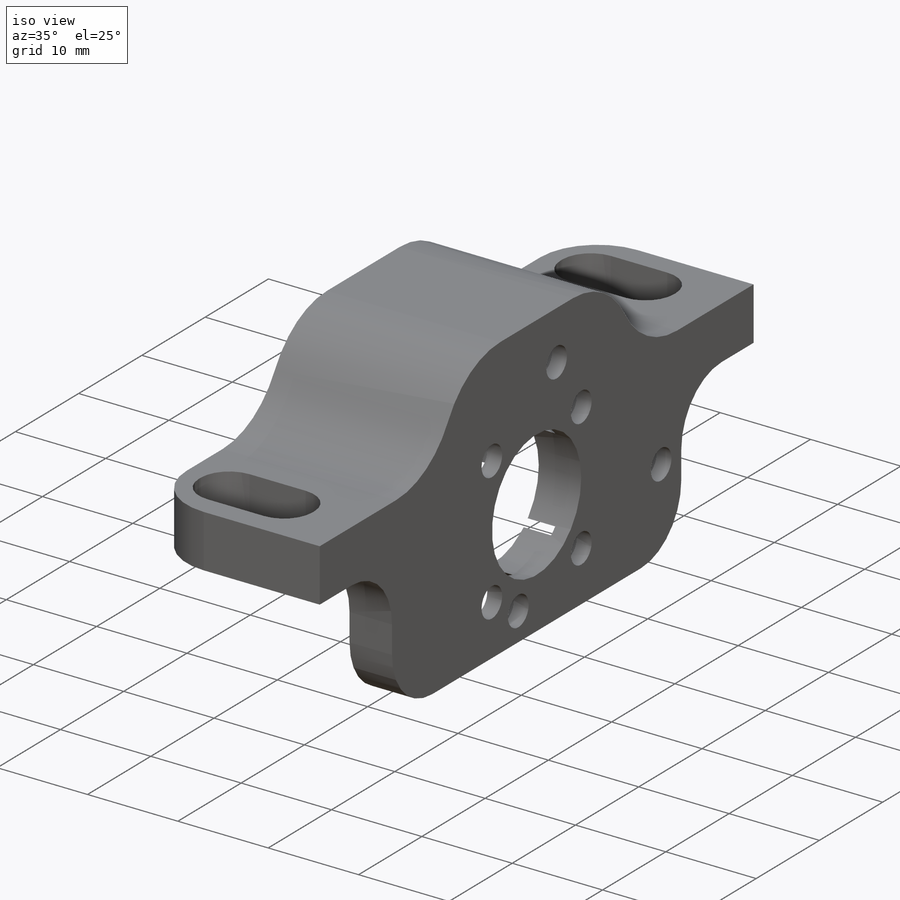
[diagram: iso view]
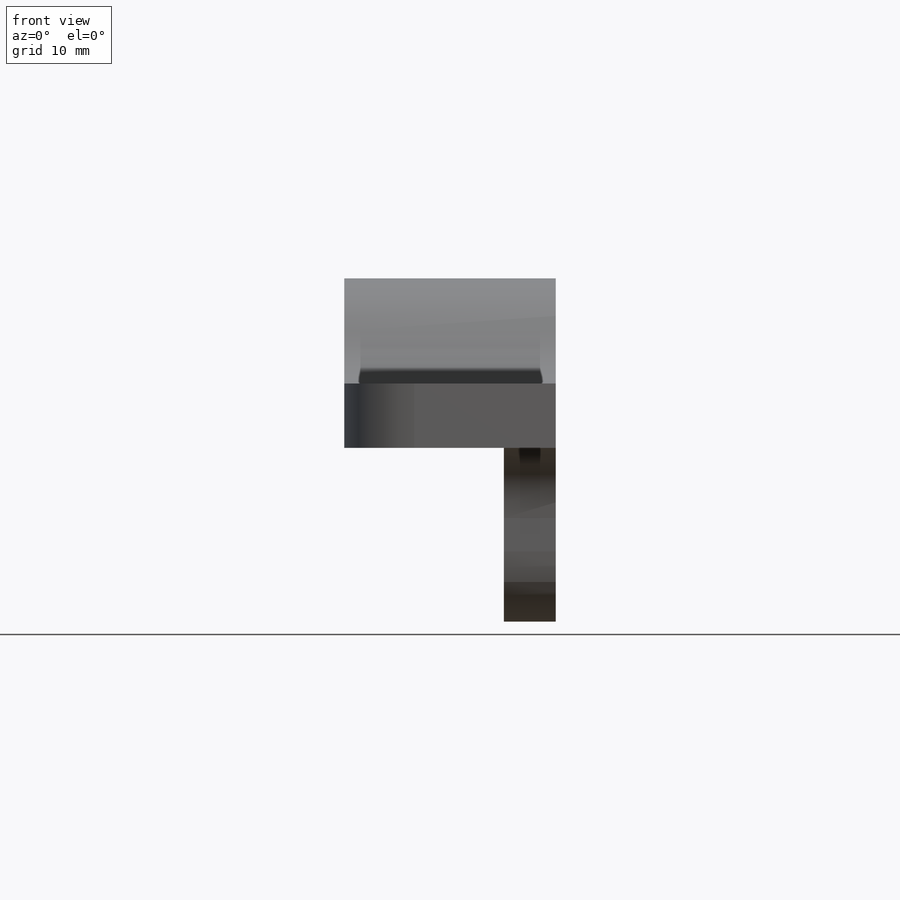
[diagram: front view]
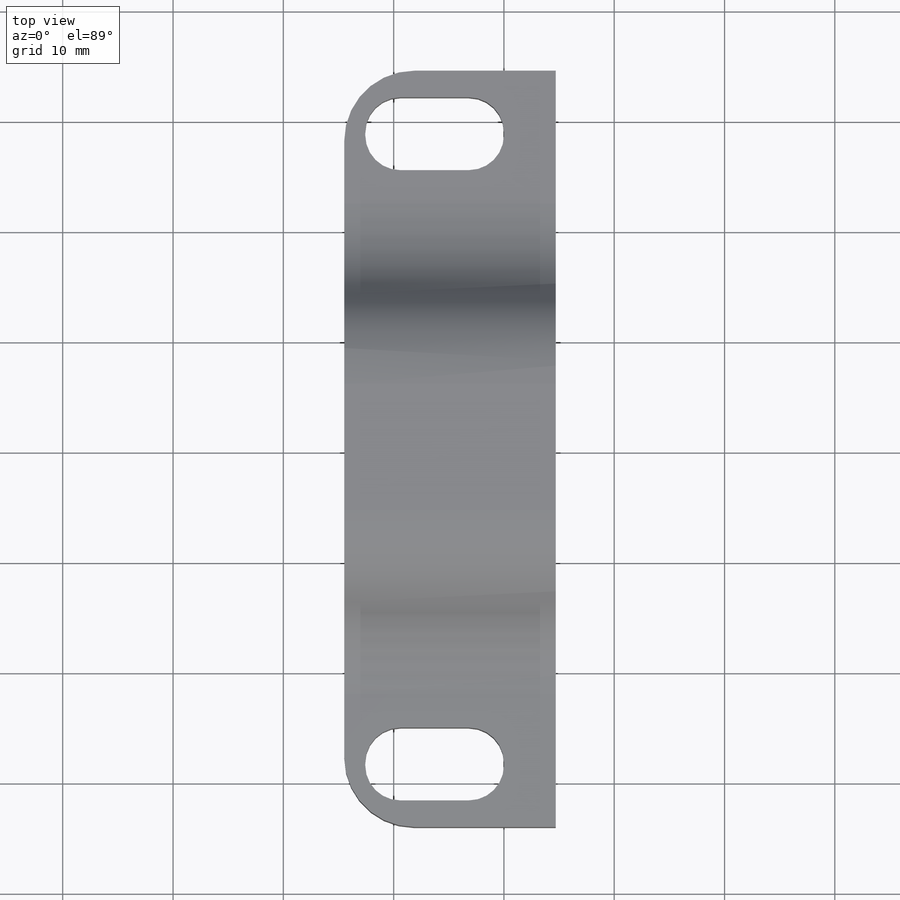
[diagram: top view]
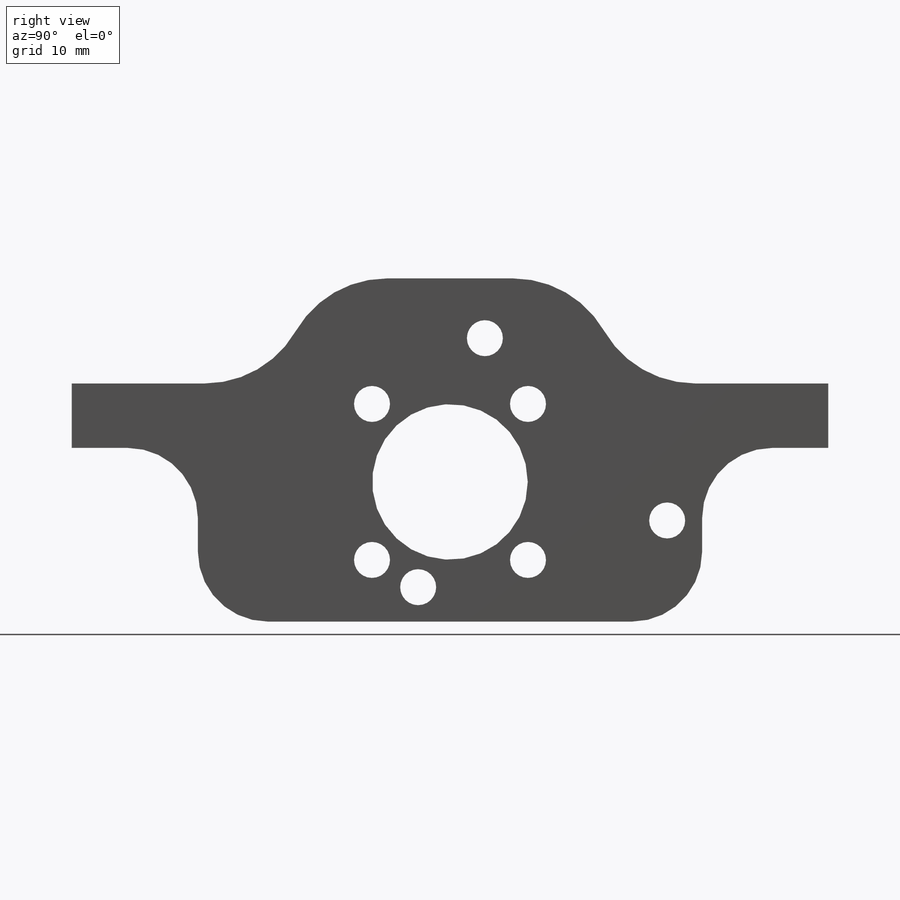
[diagram: right view]
SOLIDWORKS PART (.sldprt)
format: sldprt  version: not decoded by parser v0  size: 465,408 bytes
history: native  units: mm
features: sketch x11, cut_extrude x4, extrude x3, mirror x2, hole x2, pattern_circular x2, fillet x2, material x1 (+11 scaffold rows collapsed)
feature tree (38):
  scaffold x11  (default folders/planes/origin — collapsed)
  material  "6061-T6 (SS)"
  sketch  "Sketch1"  dims[c1.D1=62.23mm c1.D2=25.4mm c1.D3=4.699mm c1.D4=38.1mm c1.D5=38.1mm c2.D4=44.45mm c2.D1=68.58mm c2.D5=19.177mm]
  extrude  "Boss-Extrude1"  Depth=5.842mm
  sketch  "Sketch2"  dims[c1.D1=15.875mm c1.D2=31.115mm c1.D3=22.86mm c1.D4=22.86mm c2.D2=15.24mm]
  extrude  "Boss-Extrude2"  [1 undecoded]
  sketch  "Sketch3"  dims[D1=14.1mm D2=2.5781mm]
  cut_extrude  "Cut-Extrude1"  [1 undecoded]
  sketch  "Sketch4"  dims[c1.D3=3.175mm c1.D1=28.575mm c1.D2=6.604mm c1.D4=3.175mm c1.D5=3.175mm c2.D4=3.175mm c2.D5=3.175mm c3.D4=1.905mm]
  cut_extrude  "Cut-Extrude2"  [1 undecoded]
  mirror  "Mirror1"
  hole  "CBORE for #4 Socket Head Cap Screw1"  Diameter=3.2639mm Depth=4.699mm
  sketch  "Sketch6"  dims[c1.D1=6.6548mm c1.D2=~13.49375mm c1.D3=~11.366195mm c2.D3=105.0deg c2.D1=6.6548mm c2.D4=10.0mm c2.D5=~7.654166mm c3.D5=45.0deg]
  sketch  "Sketch5"  dims[hole-wizard template sketch: 42 standard entries collapsed; hole parameters kept: c12.Thru Hole Depth=4.699mm c12.C'Bore Dia.=6.0mm c12.C'Bore Depth=3.048mm]
  pattern_circular  "CirPattern1"  Count=3 Angle=360deg
  hole  "CBORE for #4 Socket Head Cap Screw2"  Diameter=3.2639mm Depth=4.699mm
  sketch  "Sketch12"
  sketch  "Sketch11"  dims[hole-wizard template sketch: 42 standard entries collapsed; hole parameters kept: c12.Thru Hole Depth=4.699mm c12.C'Bore Dia.=6.0mm c12.C'Bore Depth=3.048mm]
  pattern_circular  "CirPattern2"  Count=4 Angle=360deg
  sketch  "Sketch8"  dims[c1.D3=6.35mm c1.D1=2.54mm c1.D2=6.35mm c2.D1=3.175mm]
  extrude  "Boss-Extrude3"  [1 undecoded]
  sketch  "Sketch9"  dims[D1=0.0mm]
  cut_extrude  "Cut-Extrude3"  [1 undecoded]
  mirror  "Mirror3"
  fillet  "Fillet2"  Radius=6.35mm
  sketch  "Sketch10"  dims[D2=50.8mm D1=~43.85056mm]
  cut_extrude  "Cut-Extrude4"  [1 undecoded]
  fillet  "Fillet3"  Radius=6.35mm
decode coverage: 17 of 26 modeling features carry decoded parameters
note: ~ marks probable driven/reference dimensions
note: 6 parameter values undecoded
summary: no parameter record found for 6 features
note: suppression state not decoded; provenance and decode notes live in map.json
